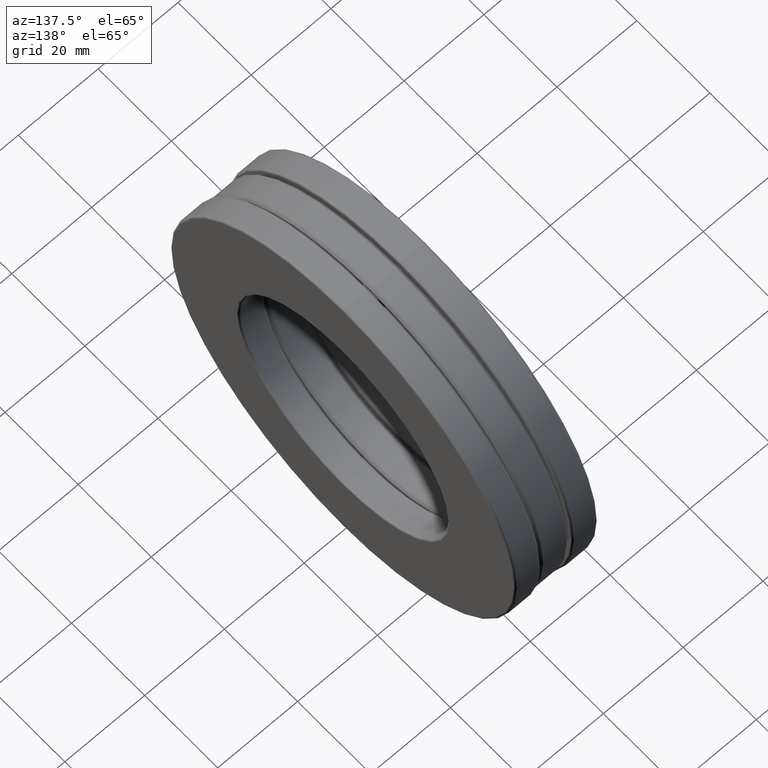
[diagram: clean part render]
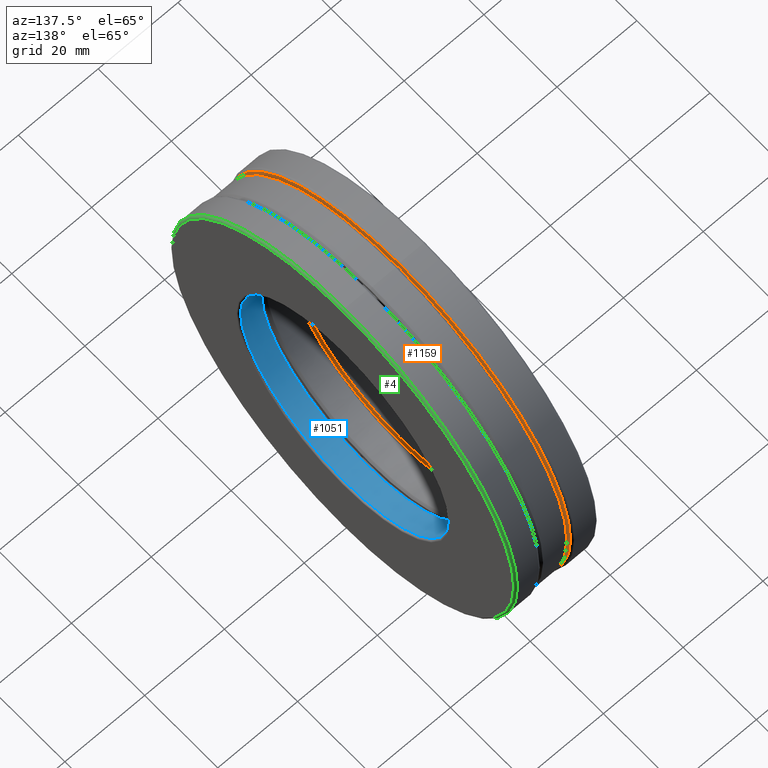
[diagram: same view with three faces highlighted in distinct colors, each labeled with its STEP entity id]
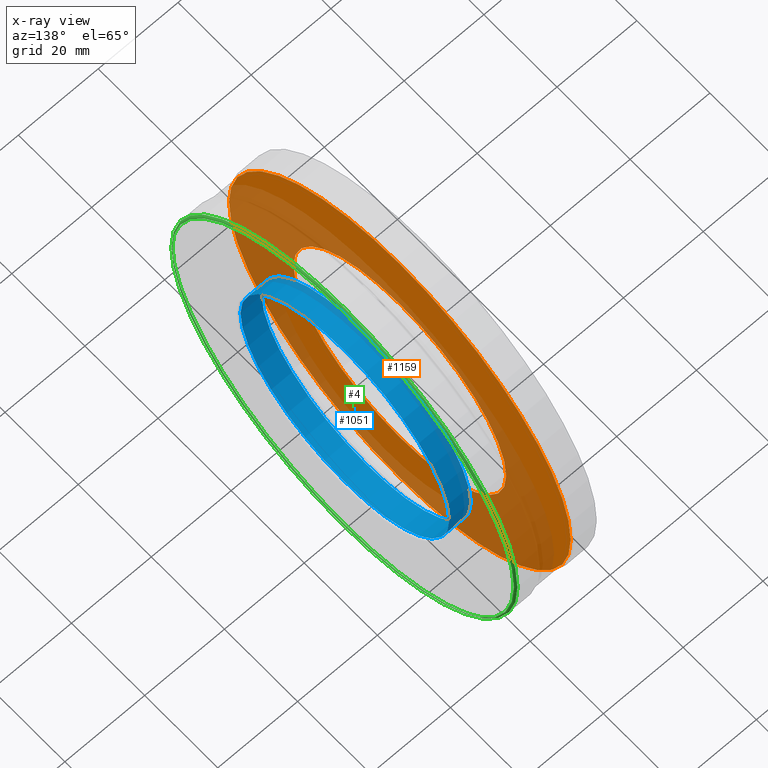
[diagram: x-ray of the same camera — body ghosted, the three highlighted faces saturated]
A machine part, auxiliary view with three faces highlighted in distinct colors.
The next image is the same camera in x-ray (body ghosted, the three faces saturated) — at least one of them is partly hidden behind the body in this view.
Their STEP definitions:

[orange] entity #1159 — the highlighted planar face has unit normal (1, 0, 0).
#29 = CIRCLE ( 'NONE', #1402, 1.839375000000000600 ) ;
#44 = EDGE_LOOP ( 'NONE', ( #1399 ) ) ;
#49 = CARTESIAN_POINT ( 'NONE',  ( -0.1559999999999999200, 0.0000000000000000000, 0.0000000000000000000 ) ) ;
#175 = DIRECTION ( 'NONE',  ( 0.0000000000000000000, 0.0000000000000000000, -1.000000000000000000 ) ) ;
#222 = ORIENTED_EDGE ( 'NONE', *, *, #801, .T. ) ;
#245 = FACE_OUTER_BOUND ( 'NONE', #44, .T. ) ;
#268 = DIRECTION ( 'NONE',  ( 0.0000000000000000000, 0.0000000000000000000, 1.000000000000000000 ) ) ;
#312 = CARTESIAN_POINT ( 'NONE',  ( -0.1559999999999999200, 0.0000000000000000000, 0.0000000000000000000 ) ) ;
#342 = EDGE_CURVE ( 'NONE', #1461, #1461, #29, .T. ) ;
#358 = CARTESIAN_POINT ( 'NONE',  ( -0.1559999999999999200, 0.0000000000000000000, 1.839375000000000600 ) ) ;
#395 = DIRECTION ( 'NONE',  ( -1.000000000000000000, -0.0000000000000000000, -0.0000000000000000000 ) ) ;
#700 = AXIS2_PLACEMENT_3D ( 'NONE', #1392, #1405, #175 ) ;
#771 = DIRECTION ( 'NONE',  ( -1.000000000000000000, -0.0000000000000000000, -0.0000000000000000000 ) ) ;
#780 = CIRCLE ( 'NONE', #1429, 1.145000000000000000 ) ;
#801 = EDGE_CURVE ( 'NONE', #1163, #1163, #780, .T. ) ;
#907 = CARTESIAN_POINT ( 'NONE',  ( -0.1559999999999999200, 0.0000000000000000000, 1.145000000000000000 ) ) ;
#1100 = EDGE_LOOP ( 'NONE', ( #222 ) ) ;
#1159 = ADVANCED_FACE ( 'NONE', ( #1374, #245 ), #1170, .T. ) ;
#1163 = VERTEX_POINT ( 'NONE', #907 ) ;
#1170 = PLANE ( 'NONE',  #700 ) ;
#1374 = FACE_BOUND ( 'NONE', #1100, .T. ) ;
#1392 = CARTESIAN_POINT ( 'NONE',  ( -0.1559999999999999200, 0.0000000000000000000, 0.0000000000000000000 ) ) ;
#1399 = ORIENTED_EDGE ( 'NONE', *, *, #342, .F. ) ;
#1402 = AXIS2_PLACEMENT_3D ( 'NONE', #49, #395, #268 ) ;
#1405 = DIRECTION ( 'NONE',  ( 1.000000000000000000, 0.0000000000000000000, 0.0000000000000000000 ) ) ;
#1429 = AXIS2_PLACEMENT_3D ( 'NONE', #312, #771, #1448 ) ;
#1448 = DIRECTION ( 'NONE',  ( 0.0000000000000000000, 0.0000000000000000000, 1.000000000000000000 ) ) ;
#1461 = VERTEX_POINT ( 'NONE', #358 ) ;

[blue] entity #1051 — the highlighted cylindrical surface (bore or boss wall) has radius 28.575 mm, axis along (-1, -0, -0).
#46 = CYLINDRICAL_SURFACE ( 'NONE', #1144, 1.125000000000000000 ) ;
#48 = DIRECTION ( 'NONE',  ( 0.0000000000000000000, 0.0000000000000000000, 1.000000000000000000 ) ) ;
#102 = CARTESIAN_POINT ( 'NONE',  ( 0.0000000000000000000, 0.0000000000000000000, 0.0000000000000000000 ) ) ;
#165 = AXIS2_PLACEMENT_3D ( 'NONE', #752, #1071, #289 ) ;
#289 = DIRECTION ( 'NONE',  ( 0.0000000000000000000, 0.0000000000000000000, 1.000000000000000000 ) ) ;
#394 = EDGE_LOOP ( 'NONE', ( #1457 ) ) ;
#423 = EDGE_LOOP ( 'NONE', ( #706 ) ) ;
#444 = FACE_OUTER_BOUND ( 'NONE', #394, .T. ) ;
#449 = CARTESIAN_POINT ( 'NONE',  ( 0.1760000000000000500, 0.0000000000000000000, 1.125000000000000000 ) ) ;
#543 = EDGE_CURVE ( 'NONE', #898, #898, #643, .T. ) ;
#588 = DIRECTION ( 'NONE',  ( 0.0000000000000000000, 0.0000000000000000000, 1.000000000000000000 ) ) ;
#595 = AXIS2_PLACEMENT_3D ( 'NONE', #1153, #1407, #48 ) ;
#630 = VERTEX_POINT ( 'NONE', #1238 ) ;
#643 = CIRCLE ( 'NONE', #165, 1.125000000000000000 ) ;
#706 = ORIENTED_EDGE ( 'NONE', *, *, #543, .T. ) ;
#752 = CARTESIAN_POINT ( 'NONE',  ( 0.1760000000000000500, 0.0000000000000000000, 0.0000000000000000000 ) ) ;
#870 = EDGE_CURVE ( 'NONE', #630, #630, #1337, .T. ) ;
#885 = DIRECTION ( 'NONE',  ( -1.000000000000000000, -0.0000000000000000000, -0.0000000000000000000 ) ) ;
#898 = VERTEX_POINT ( 'NONE', #449 ) ;
#1051 = ADVANCED_FACE ( 'NONE', ( #1065, #444 ), #46, .F. ) ;
#1065 = FACE_OUTER_BOUND ( 'NONE', #423, .T. ) ;
#1071 = DIRECTION ( 'NONE',  ( -1.000000000000000000, -0.0000000000000000000, -0.0000000000000000000 ) ) ;
#1144 = AXIS2_PLACEMENT_3D ( 'NONE', #102, #885, #588 ) ;
#1153 = CARTESIAN_POINT ( 'NONE',  ( 0.3860000000000000700, 0.0000000000000000000, 0.0000000000000000000 ) ) ;
#1238 = CARTESIAN_POINT ( 'NONE',  ( 0.3860000000000000700, 0.0000000000000000000, 1.125000000000000000 ) ) ;
#1337 = CIRCLE ( 'NONE', #595, 1.125000000000000000 ) ;
#1407 = DIRECTION ( 'NONE',  ( -1.000000000000000000, -0.0000000000000000000, -0.0000000000000000000 ) ) ;
#1457 = ORIENTED_EDGE ( 'NONE', *, *, #870, .F. ) ;

[green] entity #4 — the highlighted toroidal blend (fillet) surface has major radius 46.7201 mm and minor (blend) radius 0.508 mm.
#4 = ADVANCED_FACE ( 'NONE', ( #30, #1385 ), #936, .T. ) ;
#9 = CARTESIAN_POINT ( 'NONE',  ( 0.4060000000000001400, 0.0000000000000000000, 1.839375000000000600 ) ) ;
#15 = AXIS2_PLACEMENT_3D ( 'NONE', #1053, #1041, #597 ) ;
#30 = FACE_OUTER_BOUND ( 'NONE', #668, .T. ) ;
#53 = DIRECTION ( 'NONE',  ( 0.0000000000000000000, 0.0000000000000000000, 1.000000000000000000 ) ) ;
#61 = ORIENTED_EDGE ( 'NONE', *, *, #437, .F. ) ;
#119 = CARTESIAN_POINT ( 'NONE',  ( 0.3860000000000006200, 0.0000000000000000000, 1.859375000000000200 ) ) ;
#306 = VERTEX_POINT ( 'NONE', #9 ) ;
#411 = EDGE_LOOP ( 'NONE', ( #555 ) ) ;
#437 = EDGE_CURVE ( 'NONE', #612, #612, #528, .T. ) ;
#528 = CIRCLE ( 'NONE', #15, 1.859375000000000200 ) ;
#544 = CARTESIAN_POINT ( 'NONE',  ( 0.3860000000000006200, 0.0000000000000000000, 0.0000000000000000000 ) ) ;
#555 = ORIENTED_EDGE ( 'NONE', *, *, #1203, .T. ) ;
#557 = DIRECTION ( 'NONE',  ( 0.0000000000000000000, 0.0000000000000000000, 1.000000000000000000 ) ) ;
#597 = DIRECTION ( 'NONE',  ( 0.0000000000000000000, 0.0000000000000000000, 1.000000000000000000 ) ) ;
#612 = VERTEX_POINT ( 'NONE', #119 ) ;
#668 = EDGE_LOOP ( 'NONE', ( #61 ) ) ;
#936 = TOROIDAL_SURFACE ( 'NONE', #1172, 1.839375000000000600, 0.01999999999999951500 ) ;
#1041 = DIRECTION ( 'NONE',  ( -1.000000000000000000, -0.0000000000000000000, -0.0000000000000000000 ) ) ;
#1053 = CARTESIAN_POINT ( 'NONE',  ( 0.3860000000000006200, 0.0000000000000000000, 0.0000000000000000000 ) ) ;
#1120 = CARTESIAN_POINT ( 'NONE',  ( 0.4060000000000001400, 0.0000000000000000000, 0.0000000000000000000 ) ) ;
#1126 = DIRECTION ( 'NONE',  ( -1.000000000000000000, -0.0000000000000000000, -0.0000000000000000000 ) ) ;
#1172 = AXIS2_PLACEMENT_3D ( 'NONE', #544, #1347, #557 ) ;
#1203 = EDGE_CURVE ( 'NONE', #306, #306, #1340, .T. ) ;
#1221 = AXIS2_PLACEMENT_3D ( 'NONE', #1120, #1126, #53 ) ;
#1340 = CIRCLE ( 'NONE', #1221, 1.839375000000000600 ) ;
#1347 = DIRECTION ( 'NONE',  ( -1.000000000000000000, -0.0000000000000000000, -0.0000000000000000000 ) ) ;
#1385 = FACE_OUTER_BOUND ( 'NONE', #411, .T. ) ;